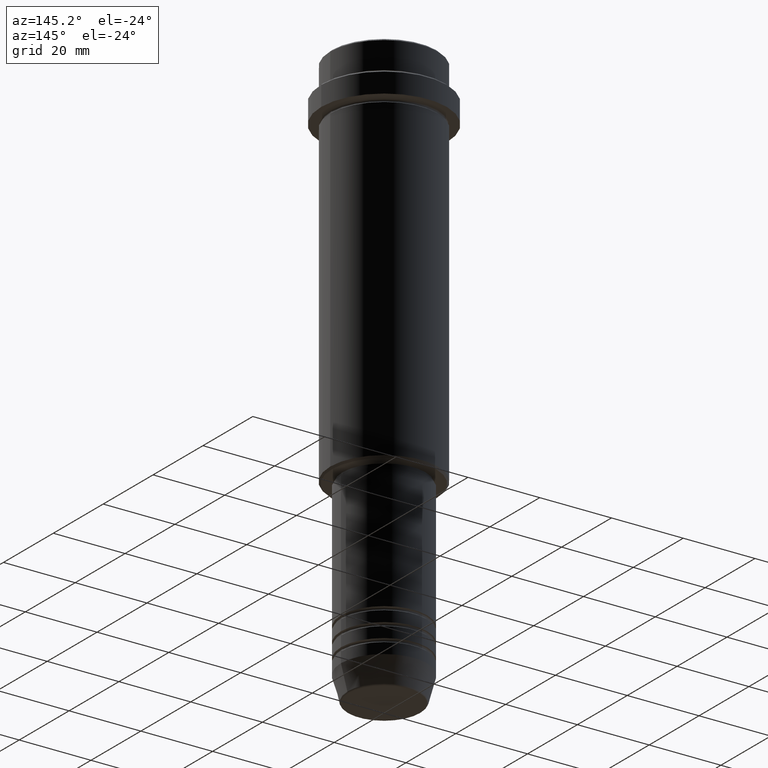
[diagram: clean part render]
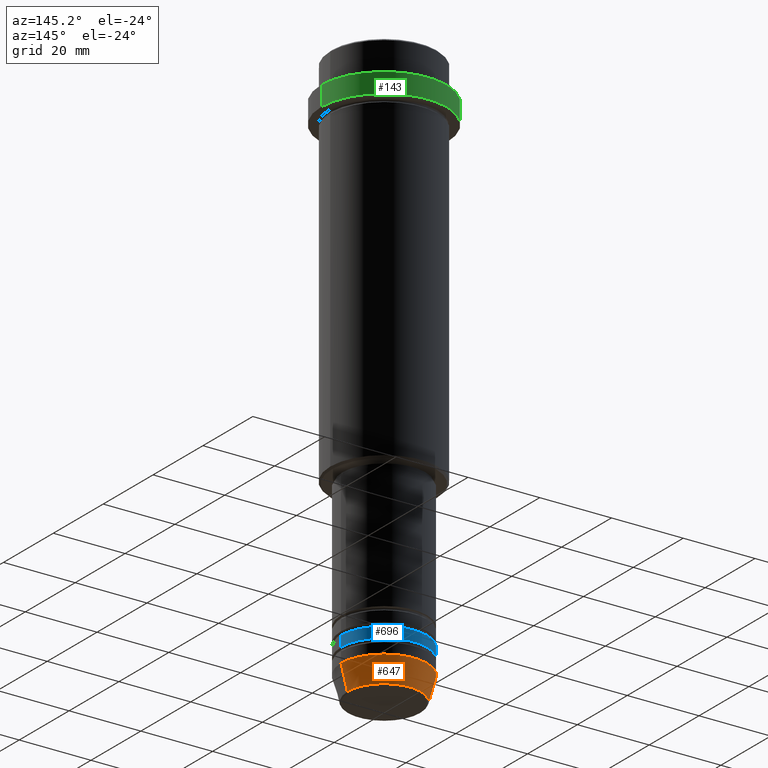
[diagram: same view with three faces highlighted in distinct colors, each labeled with its STEP entity id]
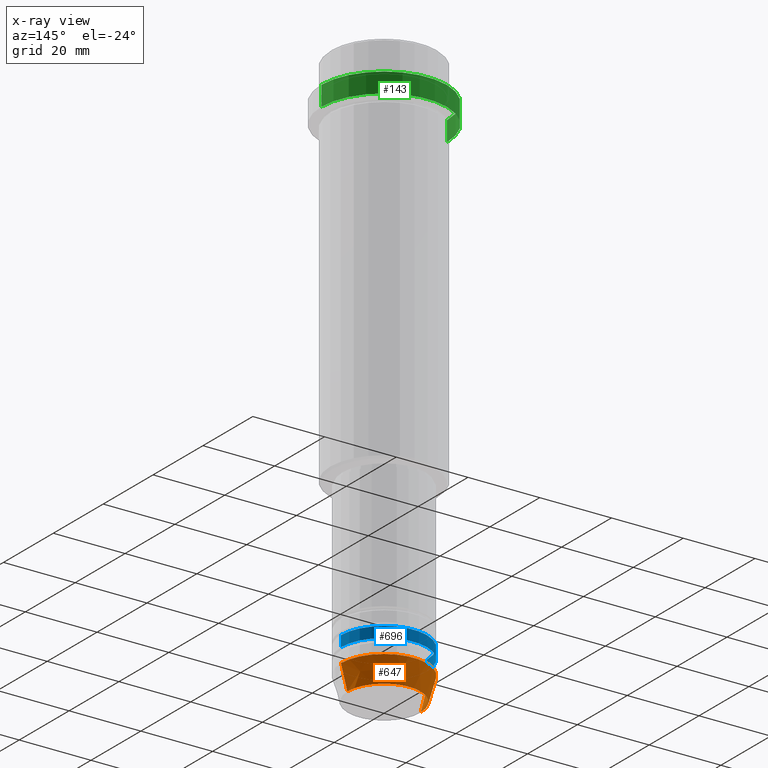
[diagram: x-ray of the same camera — body ghosted, the three highlighted faces saturated]
A machine part, auxiliary view with three faces highlighted in distinct colors.
The next image is the same camera in x-ray (body ghosted, the three faces saturated) — at least one of them is partly hidden behind the body in this view.
Their STEP definitions:

[orange] entity #647 — the highlighted conical surface has half-angle 15 deg.
#5 = EDGE_CURVE ( 'NONE', #421, #160, #592, .T. ) ;
#31 = CARTESIAN_POINT ( 'NONE',  ( 12.00000000000000000, 0.000000000000000000, -153.0000000000000000 ) ) ;
#57 = CARTESIAN_POINT ( 'NONE',  ( 0.000000000000000000, 0.000000000000000000, -153.0000000000000000 ) ) ;
#134 = LINE ( 'NONE', #31, #1290 ) ;
#160 = VERTEX_POINT ( 'NONE', #830 ) ;
#186 = ORIENTED_EDGE ( 'NONE', *, *, #1208, .F. ) ;
#188 = ORIENTED_EDGE ( 'NONE', *, *, #915, .T. ) ;
#205 = ORIENTED_EDGE ( 'NONE', *, *, #358, .F. ) ;
#352 = DIRECTION ( 'NONE',  ( -0.2588190451025213501, 3.169619151431772337E-17, 0.9659258262890680902 ) ) ;
#358 = EDGE_CURVE ( 'NONE', #480, #1232, #134, .T. ) ;
#359 = CIRCLE ( 'NONE', #1252, 10.22365507213719127 ) ;
#387 = DIRECTION ( 'NONE',  ( -0.000000000000000000, -0.000000000000000000, 1.000000000000000000 ) ) ;
#421 = VERTEX_POINT ( 'NONE', #1013 ) ;
#428 = CONICAL_SURFACE ( 'NONE', #1335, 12.00000000000000000, 0.2617993877991500740 ) ;
#459 = DIRECTION ( 'NONE',  ( -0.000000000000000000, -0.000000000000000000, 1.000000000000000000 ) ) ;
#480 = VERTEX_POINT ( 'NONE', #1096 ) ;
#483 = CARTESIAN_POINT ( 'NONE',  ( 12.00000000000000000, 0.000000000000000000, -153.0000000000000000 ) ) ;
#489 = DIRECTION ( 'NONE',  ( -0.000000000000000000, -0.000000000000000000, 1.000000000000000000 ) ) ;
#549 = CARTESIAN_POINT ( 'NONE',  ( 0.000000000000000000, 0.000000000000000000, -159.6294095225512422 ) ) ;
#592 = LINE ( 'NONE', #1015, #1384 ) ;
#647 = ADVANCED_FACE ( 'NONE', ( #1041 ), #428, .T. ) ;
#815 = ORIENTED_EDGE ( 'NONE', *, *, #5, .T. ) ;
#828 = DIRECTION ( 'NONE',  ( 1.000000000000000000, 0.000000000000000000, 0.000000000000000000 ) ) ;
#830 = CARTESIAN_POINT ( 'NONE',  ( -12.00000000000000000, 1.469576158976823947E-15, -153.0000000000000000 ) ) ;
#915 = EDGE_CURVE ( 'NONE', #480, #421, #359, .T. ) ;
#920 = CARTESIAN_POINT ( 'NONE',  ( 0.000000000000000000, 0.000000000000000000, -153.0000000000000000 ) ) ;
#1013 = CARTESIAN_POINT ( 'NONE',  ( -10.22365507213719127, 1.360806402472382744E-15, -159.6294095225512422 ) ) ;
#1015 = CARTESIAN_POINT ( 'NONE',  ( -12.00000000000000000, 1.469576158976823947E-15, -153.0000000000000000 ) ) ;
#1041 = FACE_OUTER_BOUND ( 'NONE', #1292, .T. ) ;
#1096 = CARTESIAN_POINT ( 'NONE',  ( 10.22365507213719127, 0.000000000000000000, -159.6294095225512422 ) ) ;
#1115 = AXIS2_PLACEMENT_3D ( 'NONE', #920, #489, #1349 ) ;
#1122 = DIRECTION ( 'NONE',  ( 1.000000000000000000, 0.000000000000000000, 0.000000000000000000 ) ) ;
#1208 = EDGE_CURVE ( 'NONE', #1232, #160, #1410, .T. ) ;
#1232 = VERTEX_POINT ( 'NONE', #483 ) ;
#1252 = AXIS2_PLACEMENT_3D ( 'NONE', #549, #459, #1122 ) ;
#1290 = VECTOR ( 'NONE', #1310, 1000.000000000000000 ) ;
#1292 = EDGE_LOOP ( 'NONE', ( #188, #815, #186, #205 ) ) ;
#1310 = DIRECTION ( 'NONE',  ( 0.2588190451025213501, 0.000000000000000000, 0.9659258262890680902 ) ) ;
#1335 = AXIS2_PLACEMENT_3D ( 'NONE', #57, #387, #828 ) ;
#1349 = DIRECTION ( 'NONE',  ( 1.000000000000000000, 0.000000000000000000, 0.000000000000000000 ) ) ;
#1384 = VECTOR ( 'NONE', #352, 1000.000000000000000 ) ;
#1410 = CIRCLE ( 'NONE', #1115, 12.00000000000000000 ) ;

[blue] entity #696 — the highlighted cylindrical surface (partial cylindrical patch) has radius 12 mm, axis along (-0, -0, 1).
#110 = CARTESIAN_POINT ( 'NONE',  ( 0.000000000000000000, 0.000000000000000000, -145.9999999999999147 ) ) ;
#148 = VECTOR ( 'NONE', #1089, 1000.000000000000000 ) ;
#166 = EDGE_CURVE ( 'NONE', #954, #1062, #171, .T. ) ;
#171 = LINE ( 'NONE', #613, #1181 ) ;
#208 = CARTESIAN_POINT ( 'NONE',  ( 12.00000000000000000, 0.000000000000000000, 0.000000000000000000 ) ) ;
#210 = EDGE_CURVE ( 'NONE', #259, #1330, #1402, .T. ) ;
#247 = ORIENTED_EDGE ( 'NONE', *, *, #874, .F. ) ;
#259 = VERTEX_POINT ( 'NONE', #1083 ) ;
#303 = CARTESIAN_POINT ( 'NONE',  ( 0.000000000000000000, 0.000000000000000000, 0.000000000000000000 ) ) ;
#315 = AXIS2_PLACEMENT_3D ( 'NONE', #110, #793, #449 ) ;
#322 = ORIENTED_EDGE ( 'NONE', *, *, #743, .T. ) ;
#414 = CARTESIAN_POINT ( 'NONE',  ( 12.00000000000000000, 0.000000000000000000, -145.9999999999999147 ) ) ;
#416 = FACE_OUTER_BOUND ( 'NONE', #966, .T. ) ;
#449 = DIRECTION ( 'NONE',  ( 1.000000000000000000, 0.000000000000000000, 0.000000000000000000 ) ) ;
#475 = AXIS2_PLACEMENT_3D ( 'NONE', #303, #652, #1188 ) ;
#608 = CARTESIAN_POINT ( 'NONE',  ( -12.00000000000000000, 1.469576158976823947E-15, -148.9999999999999147 ) ) ;
#613 = CARTESIAN_POINT ( 'NONE',  ( -12.00000000000000000, 1.469576158976823947E-15, 0.000000000000000000 ) ) ;
#652 = DIRECTION ( 'NONE',  ( -0.000000000000000000, -0.000000000000000000, 1.000000000000000000 ) ) ;
#679 = CIRCLE ( 'NONE', #315, 12.00000000000000000 ) ;
#696 = ADVANCED_FACE ( 'NONE', ( #416 ), #1393, .T. ) ;
#704 = CARTESIAN_POINT ( 'NONE',  ( -12.00000000000000000, 1.469576158976823947E-15, -145.9999999999999147 ) ) ;
#722 = ORIENTED_EDGE ( 'NONE', *, *, #166, .T. ) ;
#743 = EDGE_CURVE ( 'NONE', #259, #954, #770, .T. ) ;
#770 = CIRCLE ( 'NONE', #1113, 12.00000000000000000 ) ;
#793 = DIRECTION ( 'NONE',  ( -0.000000000000000000, -0.000000000000000000, 1.000000000000000000 ) ) ;
#874 = EDGE_CURVE ( 'NONE', #1330, #1062, #679, .T. ) ;
#954 = VERTEX_POINT ( 'NONE', #608 ) ;
#966 = EDGE_LOOP ( 'NONE', ( #322, #722, #247, #1412 ) ) ;
#1057 = DIRECTION ( 'NONE',  ( -0.000000000000000000, -0.000000000000000000, 1.000000000000000000 ) ) ;
#1062 = VERTEX_POINT ( 'NONE', #704 ) ;
#1083 = CARTESIAN_POINT ( 'NONE',  ( 12.00000000000000000, 0.000000000000000000, -148.9999999999999147 ) ) ;
#1089 = DIRECTION ( 'NONE',  ( -0.000000000000000000, -0.000000000000000000, 1.000000000000000000 ) ) ;
#1113 = AXIS2_PLACEMENT_3D ( 'NONE', #1289, #1387, #1178 ) ;
#1178 = DIRECTION ( 'NONE',  ( 1.000000000000000000, 0.000000000000000000, 0.000000000000000000 ) ) ;
#1181 = VECTOR ( 'NONE', #1057, 1000.000000000000000 ) ;
#1188 = DIRECTION ( 'NONE',  ( 1.000000000000000000, 0.000000000000000000, 0.000000000000000000 ) ) ;
#1289 = CARTESIAN_POINT ( 'NONE',  ( 0.000000000000000000, 0.000000000000000000, -148.9999999999999147 ) ) ;
#1330 = VERTEX_POINT ( 'NONE', #414 ) ;
#1387 = DIRECTION ( 'NONE',  ( -0.000000000000000000, -0.000000000000000000, 1.000000000000000000 ) ) ;
#1393 = CYLINDRICAL_SURFACE ( 'NONE', #475, 12.00000000000000000 ) ;
#1402 = LINE ( 'NONE', #208, #148 ) ;
#1412 = ORIENTED_EDGE ( 'NONE', *, *, #210, .F. ) ;

[green] entity #143 — the highlighted cylindrical surface (partial cylindrical patch) has radius 17.5 mm, axis along (-0, -0, 1).
#20 = CARTESIAN_POINT ( 'NONE',  ( 0.000000000000000000, 0.000000000000000000, -9.500000000000000000 ) ) ;
#23 = EDGE_CURVE ( 'NONE', #1040, #1259, #403, .T. ) ;
#54 = CARTESIAN_POINT ( 'NONE',  ( 0.000000000000000000, 0.000000000000000000, -15.00000000000000000 ) ) ;
#142 = ORIENTED_EDGE ( 'NONE', *, *, #578, .F. ) ;
#143 = ADVANCED_FACE ( 'NONE', ( #725 ), #710, .T. ) ;
#157 = CARTESIAN_POINT ( 'NONE',  ( -17.50000000000000000, 2.143131898507868248E-15, -9.500000000000000000 ) ) ;
#266 = CARTESIAN_POINT ( 'NONE',  ( 17.50000000000000000, 0.000000000000000000, -15.00000000000000000 ) ) ;
#286 = DIRECTION ( 'NONE',  ( -0.000000000000000000, -0.000000000000000000, 1.000000000000000000 ) ) ;
#288 = VECTOR ( 'NONE', #1242, 1000.000000000000000 ) ;
#308 = AXIS2_PLACEMENT_3D ( 'NONE', #605, #700, #623 ) ;
#403 = CIRCLE ( 'NONE', #1221, 17.50000000000000000 ) ;
#481 = LINE ( 'NONE', #817, #288 ) ;
#523 = ORIENTED_EDGE ( 'NONE', *, *, #1222, .T. ) ;
#560 = ORIENTED_EDGE ( 'NONE', *, *, #23, .T. ) ;
#578 = EDGE_CURVE ( 'NONE', #1040, #595, #481, .T. ) ;
#595 = VERTEX_POINT ( 'NONE', #690 ) ;
#605 = CARTESIAN_POINT ( 'NONE',  ( 0.000000000000000000, 0.000000000000000000, 0.000000000000000000 ) ) ;
#623 = DIRECTION ( 'NONE',  ( 1.000000000000000000, 0.000000000000000000, 0.000000000000000000 ) ) ;
#660 = VECTOR ( 'NONE', #286, 1000.000000000000000 ) ;
#690 = CARTESIAN_POINT ( 'NONE',  ( 17.50000000000000000, 0.000000000000000000, -9.500000000000000000 ) ) ;
#700 = DIRECTION ( 'NONE',  ( -0.000000000000000000, -0.000000000000000000, 1.000000000000000000 ) ) ;
#710 = CYLINDRICAL_SURFACE ( 'NONE', #308, 17.50000000000000000 ) ;
#725 = FACE_OUTER_BOUND ( 'NONE', #878, .T. ) ;
#817 = CARTESIAN_POINT ( 'NONE',  ( 17.50000000000000000, 0.000000000000000000, 0.000000000000000000 ) ) ;
#878 = EDGE_LOOP ( 'NONE', ( #560, #523, #1107, #142 ) ) ;
#998 = DIRECTION ( 'NONE',  ( 0.000000000000000000, 0.000000000000000000, -1.000000000000000000 ) ) ;
#1040 = VERTEX_POINT ( 'NONE', #266 ) ;
#1064 = CARTESIAN_POINT ( 'NONE',  ( -17.50000000000000000, 2.143131898507868248E-15, -15.00000000000000000 ) ) ;
#1077 = CIRCLE ( 'NONE', #1413, 17.50000000000000000 ) ;
#1104 = VERTEX_POINT ( 'NONE', #157 ) ;
#1107 = ORIENTED_EDGE ( 'NONE', *, *, #1397, .T. ) ;
#1109 = DIRECTION ( 'NONE',  ( 1.000000000000000000, 0.000000000000000000, 0.000000000000000000 ) ) ;
#1120 = DIRECTION ( 'NONE',  ( 1.000000000000000000, 0.000000000000000000, 0.000000000000000000 ) ) ;
#1125 = DIRECTION ( 'NONE',  ( -0.000000000000000000, -0.000000000000000000, 1.000000000000000000 ) ) ;
#1221 = AXIS2_PLACEMENT_3D ( 'NONE', #54, #1125, #1120 ) ;
#1222 = EDGE_CURVE ( 'NONE', #1259, #1104, #1268, .T. ) ;
#1238 = CARTESIAN_POINT ( 'NONE',  ( -17.50000000000000000, 2.143131898507868248E-15, 0.000000000000000000 ) ) ;
#1242 = DIRECTION ( 'NONE',  ( -0.000000000000000000, -0.000000000000000000, 1.000000000000000000 ) ) ;
#1259 = VERTEX_POINT ( 'NONE', #1064 ) ;
#1268 = LINE ( 'NONE', #1238, #660 ) ;
#1397 = EDGE_CURVE ( 'NONE', #1104, #595, #1077, .T. ) ;
#1413 = AXIS2_PLACEMENT_3D ( 'NONE', #20, #998, #1109 ) ;